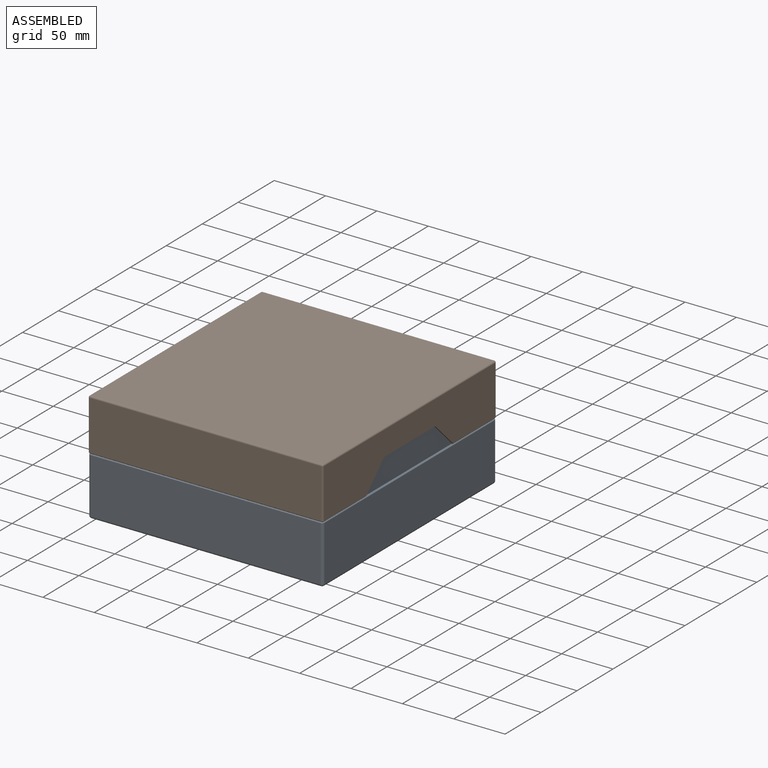
[diagram: assembled view]
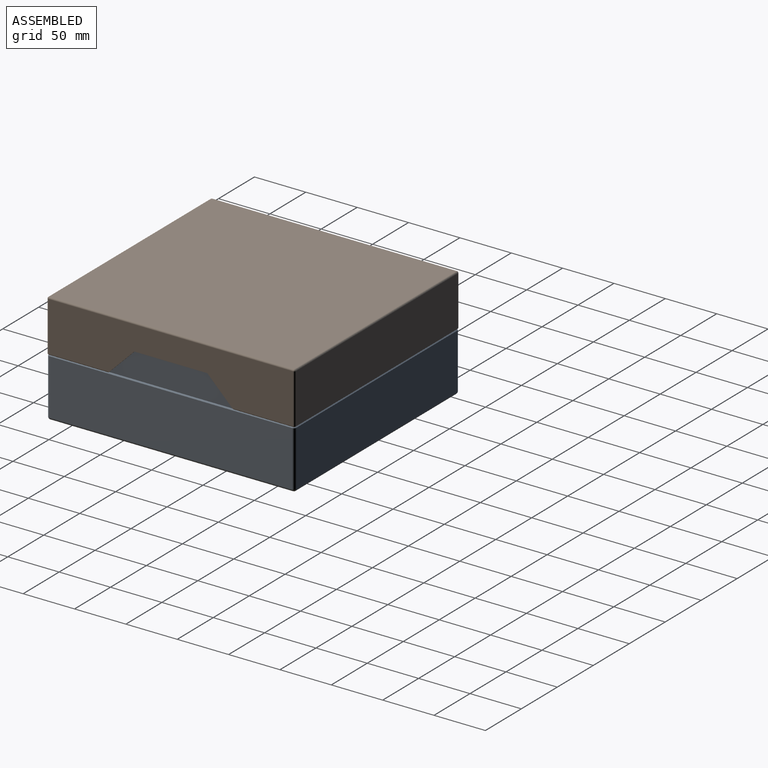
[diagram: assembled view, second angle]
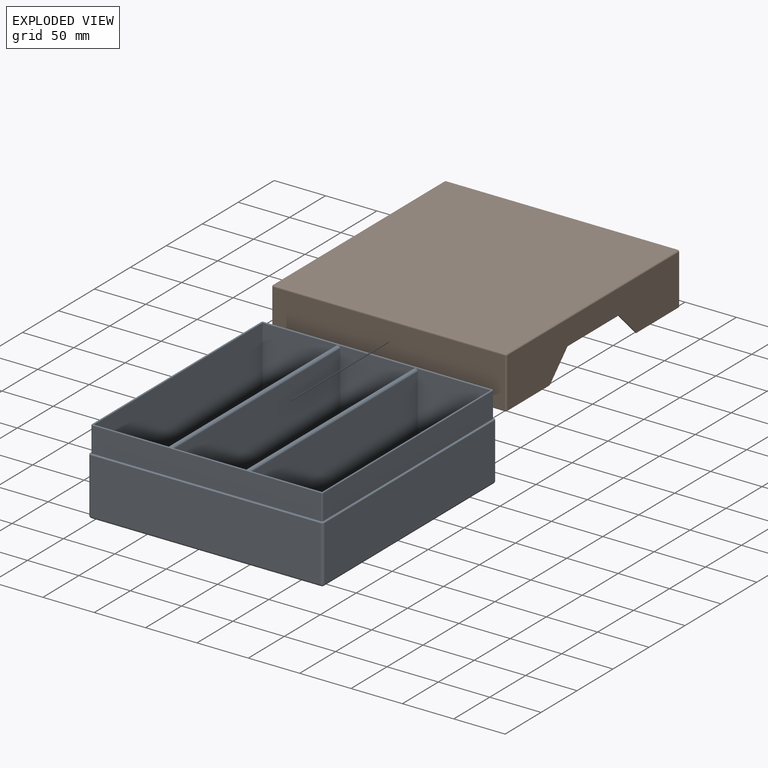
[diagram: exploded view]
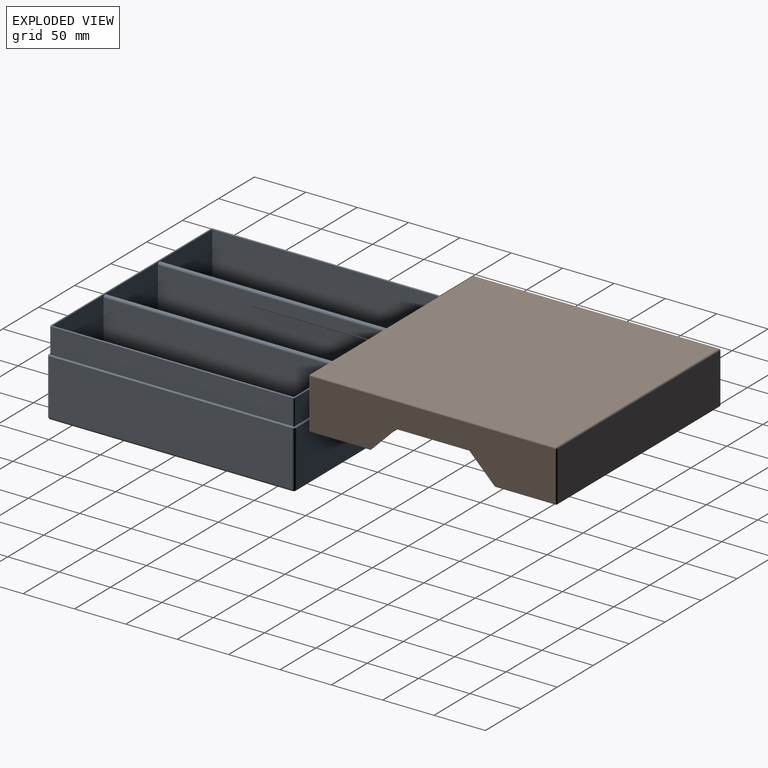
[diagram: exploded view, second angle]
ASSEMBLY  parts=2 mates=3
PART A: 59 faces, bbox 228.6x241.3x82.6 mm
  f0: plane 75.57x75.41mm, normal (0,-1,0), area 5365mm2, adj f2,f45,f53,f56,f57,f58
  f1: plane 75.57x75.41mm, normal (0,1,0), area 5365mm2, adj f2,f48,f53,f56,f57,f58
  f2: plane 234.95x71.12mm, normal (0,0,1), area 16709.6mm2, adj f0,f1,f53,f56
  f3: plane 75.41x73.34mm, normal (0,-1,0), area 5364mm2, adj f5,f9,f45,f54,f58
  f4: plane 75.41x73.34mm, normal (0,1,0), area 5364mm2, adj f5,f9,f48,f54,f58
  f5: plane 234.95x71.12mm, normal (0,0,1), area 16709.6mm2, adj f3,f4,f9,f54
  f6: plane 75.41x73.34mm, normal (0,-1,0), area 5364mm2, adj f7,f10,f45,f55,f57
  f7: plane 234.95x75.41mm, normal (1,0,0), area 17716.7mm2, adj f6,f8,f10,f46
  f8: plane 75.41x73.34mm, normal (0,1,0), area 5364mm2, adj f7,f10,f48,f55,f57
  f9: plane 234.95x75.41mm, normal (-1,0,0), area 17716.7mm2, adj f3,f4,f5,f47
  f10: plane 234.95x71.12mm, normal (0,0,1), area 16709.6mm2, adj f6,f7,f8,f55
  f11: plane 235.59x24.61mm, normal (-1,0,0), area 5796.9mm2, adj f15,f33,f36,f46
  f12: plane 222.89x24.61mm, normal (0,1,0), area 5484.4mm2, adj f15,f33,f34,f45
  f13: plane 235.59x24.61mm, normal (1,0,0), area 5796.9mm2, adj f15,f34,f35,f47
  f14: plane 222.89x24.61mm, normal (0,-1,0), area 5484.4mm2, adj f15,f35,f36,f48
  f15: plane 239.71x227.01mm, normal (0,0,1), area 737.2mm2, adj f11,f12,f13,f14,f33,f34,f35,f36
  f16: plane 236.22x223.52mm, normal (0,0,-1), area 52799.9mm2, adj f24,f25,f29,f30
  f17: plane 236.22x53.82mm, normal (1,0,0), area 12712.5mm2, adj f21,f25,f26,f43
  f18: plane 223.52x53.82mm, normal (0,-1,0), area 12029mm2, adj f21,f23,f24,f42
  f19: plane 236.22x53.82mm, normal (-1,0,0), area 12712.5mm2, adj f23,f29,f32,f38
  f20: plane 223.52x53.82mm, normal (0,1,0), area 12029mm2, adj f26,f30,f32,f39
  f21: cylinder r=2.54mm len=53.82mm, axis (0,0,1), area 214.7mm2, adj f17,f18,f22,f44
  f22: sphere r=2.54mm, area 10.1mm2, adj f21,f24,f25
  f23: cylinder r=2.54mm len=53.82mm, axis (0,0,-1), area 214.7mm2, adj f18,f19,f27,f40
  f24: cylinder r=2.54mm len=223.52mm, axis (1,0,0), area 891.8mm2, adj f16,f18,f22,f27
  f25: cylinder r=2.54mm len=236.22mm, axis (0,1,0), area 942.5mm2, adj f16,f17,f22,f28
  f26: cylinder r=2.54mm len=53.82mm, axis (0,0,-1), area 214.7mm2, adj f17,f20,f28,f41
  f27: sphere r=2.54mm, area 10.1mm2, adj f23,f24,f29
  f28: sphere r=2.54mm, area 10.1mm2, adj f25,f26,f30
  f29: cylinder r=2.54mm len=236.22mm, axis (0,-1,0), area 942.5mm2, adj f16,f19,f27,f31
  f30: cylinder r=2.54mm len=223.52mm, axis (-1,0,0), area 891.8mm2, adj f16,f20,f28,f31
  f31: sphere r=2.54mm, area 10.1mm2, adj f29,f30,f32
  f32: cylinder r=2.54mm len=53.82mm, axis (0,0,1), area 214.7mm2, adj f19,f20,f31,f37
  f33: cylinder r=1.27mm len=24.61mm, axis (0,0,-1), area 49.1mm2, adj f11,f12,f15,f49
  f34: cylinder r=1.27mm len=24.61mm, axis (0,0,1), area 49.1mm2, adj f12,f13,f15,f50
  f35: cylinder r=1.27mm len=24.61mm, axis (0,0,-1), area 49.1mm2, adj f13,f14,f15,f52
  f36: cylinder r=1.27mm len=24.61mm, axis (0,0,1), area 49.1mm2, adj f11,f14,f15,f51
  f37: cone r=1.75mm half-angle=45deg, axis (0,0,-1), area 3.8mm2, adj f15,f32,f38,f39
  f38: plane 236.22x0.79mm, normal (-0.71,0,0.71), area 265.2mm2, adj f15,f19,f37,f40
  f39: plane 223.52x0.79mm, normal (0,0.71,0.71), area 250.9mm2, adj f15,f20,f37,f41
  f40: cone r=1.75mm half-angle=45deg, axis (0,0,-1), area 3.8mm2, adj f15,f23,f38,f42
  f41: cone r=1.75mm half-angle=45deg, axis (0,0,-1), area 3.8mm2, adj f15,f26,f39,f43
  f42: plane 223.52x0.79mm, normal (0,-0.71,0.71), area 250.9mm2, adj f15,f18,f40,f44
  f43: plane 236.22x0.79mm, normal (0.71,0,0.71), area 265.2mm2, adj f15,f17,f41,f44
  f44: cone r=1.75mm half-angle=45deg, axis (0,0,-1), area 3.8mm2, adj f15,f21,f42,f43
  f45: cylinder r=0.79mm len=223.67mm, axis (1,0,0), area 555.7mm2, adj f0,f3,f6,f12,f46,f47,f49,f50
  f46: cylinder r=0.79mm len=236.37mm, axis (0,1,0), area 587.4mm2, adj f7,f11,f45,f48,f49,f51
  f47: cylinder r=0.79mm len=236.37mm, axis (0,-1,0), area 587.4mm2, adj f9,f13,f45,f48,f50,f52
  f48: cylinder r=0.79mm len=223.67mm, axis (-1,0,0), area 555.7mm2, adj f1,f4,f8,f14,f46,f47,f51,f52
  f49: torus R=0.48mm, axis (0,0,1), area 1.9mm2, adj f33,f45,f46
  f50: torus R=0.48mm, axis (0,0,1), area 1.9mm2, adj f34,f45,f47
  f51: torus R=0.48mm, axis (0,0,1), area 1.9mm2, adj f36,f46,f48
  f52: torus R=0.48mm, axis (0,0,1), area 1.9mm2, adj f35,f47,f48
  f53: plane 234.95x73.18mm, normal (-1,0,0), area 17194.5mm2, adj f0,f1,f2,f58
  f54: plane 234.95x73.18mm, normal (1,0,0), area 17194.5mm2, adj f3,f4,f5,f58
  f55: plane 234.95x73.18mm, normal (-1,0,0), area 17194.5mm2, adj f6,f8,f10,f57
  f56: plane 234.95x73.18mm, normal (1,0,0), area 17194.5mm2, adj f0,f1,f2,f57
  f57: cylinder r=2.22mm len=234.95mm, axis (0,-1,0), area 1640.5mm2, adj f0,f1,f6,f8,f55,f56
  f58: cylinder r=2.22mm len=234.95mm, axis (0,-1,0), area 1640.5mm2, adj f0,f1,f3,f4,f53,f54
PART B: 40 faces, bbox 228.6x241.3x50.8 mm
  f0: plane 227.01x58.9mm, normal (0,0,-1), area 203.8mm2, adj f3,f5,f7,f8,f25,f27,f29,f32
  f1: plane 238.13x48.42mm, normal (-1,0,0), area 9174.3mm2, adj f5,f6,f18,f22,f24,f37,f38,f39
  f2: plane 238.13x48.42mm, normal (1,0,0), area 9174.3mm2, adj f3,f4,f13,f15,f16,f34,f35,f36
  f3: plane 58.9x0.79mm, normal (0.71,0,-0.71), area 65.7mm2, adj f0,f2,f25,f36
  f4: plane 58.9x0.79mm, normal (0.71,0,-0.71), area 65.7mm2, adj f2,f9,f26,f34
  f5: plane 58.9x0.79mm, normal (-0.71,0,-0.71), area 65.7mm2, adj f0,f1,f29,f37
  f6: plane 58.9x0.79mm, normal (-0.71,0,-0.71), area 65.7mm2, adj f1,f9,f30,f39
  f7: plane 238.53x47.63mm, normal (1,0,0), area 8908.1mm2, adj f0,f9,f31,f32,f33,f37,f38,f39
  f8: plane 238.53x47.63mm, normal (-1,0,0), area 8908.1mm2, adj f0,f9,f31,f32,f33,f34,f35,f36
  f9: plane 227.01x58.9mm, normal (0,0,-1), area 203.8mm2, adj f4,f6,f7,f8,f26,f28,f30,f31
  f10: plane 225.43x48.42mm, normal (0,1,0), area 10914.8mm2, adj f15,f21,f24,f27
  f11: plane 225.43x48.42mm, normal (0,-1,0), area 10914.8mm2, adj f13,f17,f18,f28
  f12: plane 238.13x225.43mm, normal (0,0,1), area 53679.3mm2, adj f16,f17,f21,f22
  f13: cylinder r=1.59mm len=48.42mm, axis (0,0,1), area 120.7mm2, adj f2,f11,f14,f26
  f14: sphere r=1.59mm, area 4mm2, adj f13,f16,f17
  f15: cylinder r=1.59mm len=48.42mm, axis (0,0,-1), area 120.7mm2, adj f2,f10,f19,f25
  f16: cylinder r=1.59mm len=238.13mm, axis (0,-1,0), area 593.8mm2, adj f2,f12,f14,f19
  f17: cylinder r=1.59mm len=225.43mm, axis (-1,0,0), area 562.1mm2, adj f11,f12,f14,f20
  f18: cylinder r=1.59mm len=48.42mm, axis (0,0,-1), area 120.7mm2, adj f1,f11,f20,f30
  f19: sphere r=1.59mm, area 4mm2, adj f15,f16,f21
  f20: sphere r=1.59mm, area 4mm2, adj f17,f18,f22
  f21: cylinder r=1.59mm len=225.43mm, axis (1,0,0), area 562.1mm2, adj f10,f12,f19,f23
  f22: cylinder r=1.59mm len=238.13mm, axis (0,1,0), area 593.8mm2, adj f1,f12,f20,f23
  f23: sphere r=1.59mm, area 4mm2, adj f21,f22,f24
  f24: cylinder r=1.59mm len=48.42mm, axis (0,0,1), area 120.7mm2, adj f1,f10,f23,f29
  f25: cone r=0.79mm half-angle=45deg, axis (0,0,1), area 2.1mm2, adj f0,f3,f15,f27
  f26: cone r=0.79mm half-angle=45deg, axis (0,0,1), area 2.1mm2, adj f4,f9,f13,f28
  f27: plane 225.43x0.79mm, normal (0,0.71,-0.71), area 253mm2, adj f0,f10,f25,f29
  f28: plane 225.43x0.79mm, normal (0,-0.71,-0.71), area 253mm2, adj f9,f11,f26,f30
  f29: cone r=0.79mm half-angle=45deg, axis (0,0,1), area 2.1mm2, adj f0,f5,f24,f27
  f30: cone r=0.79mm half-angle=45deg, axis (0,0,1), area 2.1mm2, adj f6,f9,f18,f28
  f31: plane 225.83x47.63mm, normal (0,1,0), area 10754.9mm2, adj f7,f8,f9,f33
  f32: plane 225.83x47.63mm, normal (0,-1,0), area 10754.9mm2, adj f0,f7,f8,f33
  f33: plane 238.53x225.83mm, normal (0,0,-1), area 53864.9mm2, adj f7,f8,f31,f32
  f34: plane 25.4x25.4mm, normal (0,0.71,-0.71), area 49.4mm2, adj f2,f4,f8,f9,f35
  f35: plane 71.12x1.39mm, normal (0,0,-1), area 98.7mm2, adj f2,f8,f34,f36
  f36: plane 25.4x25.4mm, normal (0,-0.71,-0.71), area 49.4mm2, adj f0,f2,f3,f8,f35
  f37: plane 25.4x25.4mm, normal (0,-0.71,-0.71), area 49.4mm2, adj f0,f1,f5,f7,f38
  f38: plane 71.12x1.39mm, normal (0,0,-1), area 98.7mm2, adj f1,f7,f37,f39
  f39: plane 25.4x25.4mm, normal (0,0.71,-0.71), area 49.4mm2, adj f1,f6,f7,f9,f38
PLACE A t=(-82,-48.87,-37.11)mm
PLACE B t=(-75.42,-52.57,20.05)mm
MATE planar B.f11 <-> A.f18  axis (0,-1,0) through (-85.13,-166.57,45.06)mm
MATE parallel A.f18 <-> B.f11  axis (0,-1,0) through (-85.13,-166.57,-7.67)mm
MATE planar B.f2 <-> A.f17  axis (1,0,0) through (29.17,-45.92,48.38)mm
